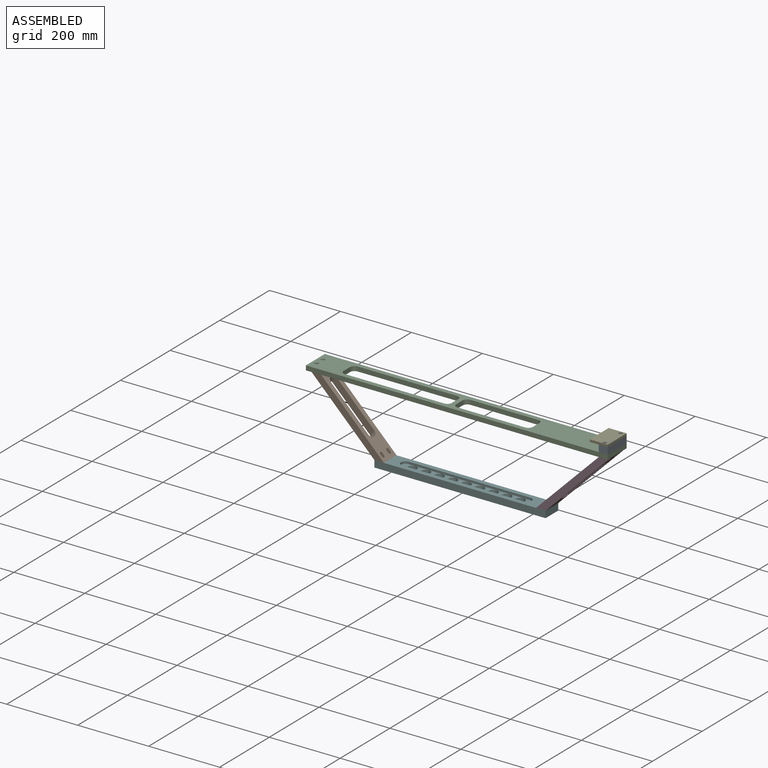
[diagram: assembled view]
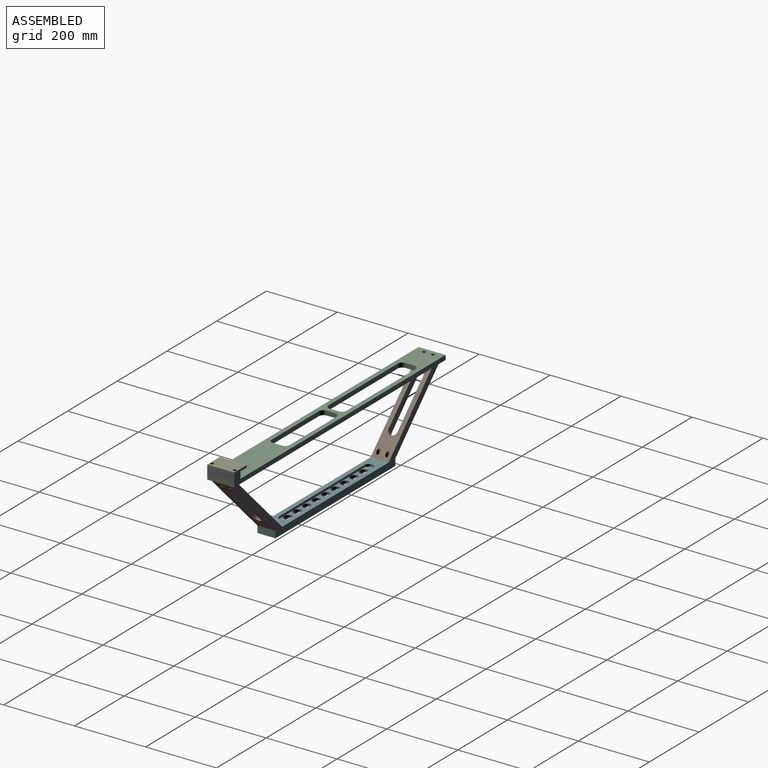
[diagram: assembled view, second angle]
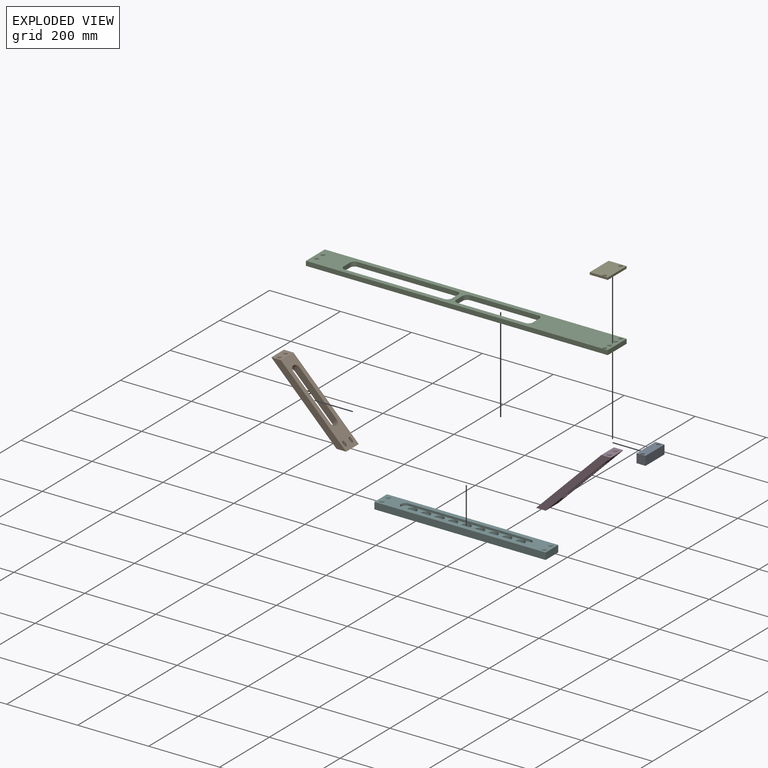
[diagram: exploded view]
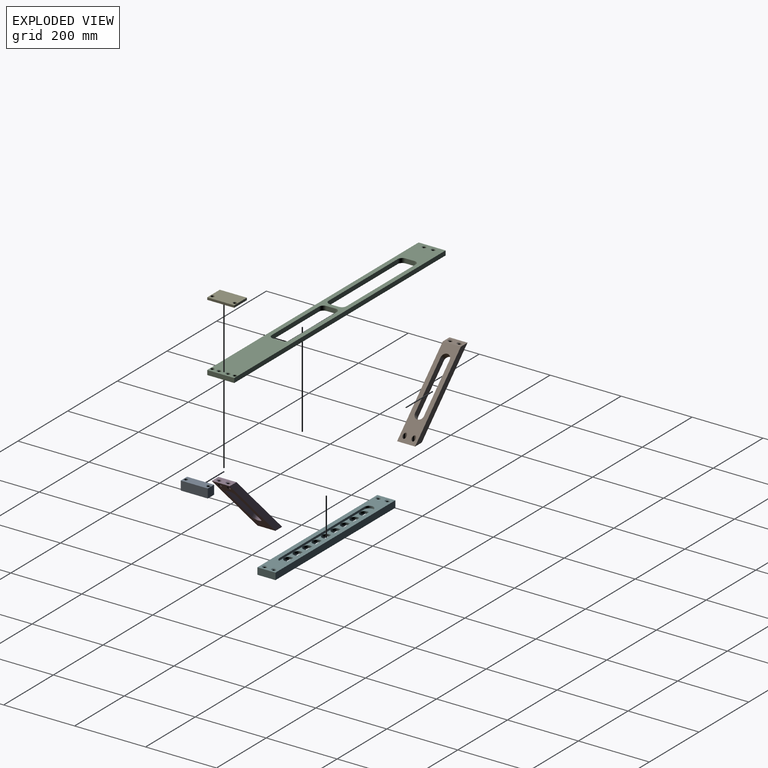
[diagram: exploded view, second angle]
ASSEMBLY  parts=6 mates=4
PART A: 12 faces, bbox 76.2x25.4x25.4 mm
  f0: plane 76.2x25.4mm, normal (0,0,1), area 1730.3mm2, adj f1,f3,f4,f5,f7,f9
  f1: plane 25.4x25.4mm, normal (-1,0,0), area 645.2mm2, adj f0,f2,f4,f5
  f2: plane 76.2x25.4mm, normal (0,0,-1), area 1706.8mm2, adj f1,f3,f4,f5,f10,f11
  f3: plane 25.4x25.4mm, normal (1,0,0), area 645.2mm2, adj f0,f2,f4,f5
  f4: plane 76.2x25.4mm, normal (0,-1,0), area 1935.5mm2, adj f0,f1,f2,f3
  f5: plane 76.2x25.4mm, normal (0,1,0), area 1935.5mm2, adj f0,f1,f2,f3
  f6: cylinder r=4.76mm len=23.03mm, axis (0,0,1), area 689.3mm2, adj f7,f10
  f7: cone r=4.76mm half-angle=41deg, axis (0,0,1), area 47.8mm2, adj f0,f6
  f8: cylinder r=4.76mm len=23.03mm, axis (0,0,1), area 689.3mm2, adj f9,f11
  f9: cone r=4.76mm half-angle=41deg, axis (0,0,1), area 47.8mm2, adj f0,f8
  f10: cone r=4.76mm half-angle=45deg, axis (0,0,-1), area 60.9mm2, adj f2,f6
  f11: cone r=4.76mm half-angle=45deg, axis (0,0,-1), area 60.9mm2, adj f2,f8
PART B: 22 faces, bbox 279.4x50.8x31.9 mm
  f0: plane 260.36x50.81mm, normal (0,0,-1), area 8711.2mm2, adj f2,f3,f4,f5,f6,f7,f8,f9
  f1: plane 260.36x50.81mm, normal (0,0,1), area 8708.7mm2, adj f2,f3,f4,f5,f6,f7,f8,f9
  f2: plane 50.8x19.05mm, normal (-0.71,0,-0.71), area 1062mm2, adj f0,f1,f4,f5,f11,f13
  f3: plane 50.8x19.05mm, normal (0.71,0,0.71), area 1062mm2, adj f0,f1,f4,f5,f17,f19
  f4: plane 279.4x19.05mm, normal (0,-1,0), area 4959.7mm2, adj f0,f1,f2,f3
  f5: plane 279.4x19.05mm, normal (0,1,0), area 4959.7mm2, adj f0,f1,f2,f3
  f6: plane 146.05x19.05mm, normal (0,-1,0), area 2782.3mm2, adj f0,f1,f7,f9
  f7: cylinder r=12.7mm len=25.4mm, axis (0,0,1), area 760.1mm2, adj f0,f1,f6,f8
  f8: plane 146.05x19.05mm, normal (0,1,0), area 2782.3mm2, adj f0,f1,f7,f9
  f9: cylinder r=12.7mm len=25.4mm, axis (0,0,1), area 760.1mm2, adj f0,f1,f6,f8
  f10: cylinder r=4.76mm len=17.51mm, axis (-0.71,0,-0.71), area 281.2mm2, adj f11,f14
  f11: cone r=4.76mm half-angle=41deg, axis (-0.71,0,-0.71), area 125mm2, adj f2,f10
  f12: cylinder r=4.76mm len=17.51mm, axis (-0.71,0,-0.71), area 281.2mm2, adj f13,f15
  f13: cone r=4.76mm half-angle=41deg, axis (-0.71,0,-0.71), area 125mm2, adj f2,f12
  f14: bspline ~16.45x11.63mm, area 60mm2, adj f1,f10
  f15: bspline ~16.45x11.63mm, area 60mm2, adj f1,f12
  f16: cylinder r=4.76mm len=17.51mm, axis (0.71,0,0.71), area 281.2mm2, adj f17,f20
  f17: cone r=4.76mm half-angle=41deg, axis (0.71,0,0.71), area 125mm2, adj f3,f16
  f18: cylinder r=4.76mm len=17.51mm, axis (0.71,0,0.71), area 281.2mm2, adj f19,f21
  f19: cone r=4.76mm half-angle=41deg, axis (0.71,0,0.71), area 125mm2, adj f3,f18
  f20: bspline ~16.45x11.63mm, area 60mm2, adj f0,f16
  f21: bspline ~16.45x11.63mm, area 60mm2, adj f0,f18
PART C: 40 faces, bbox 850.9x76.2x12.7 mm
  f0: plane 850.9x76.2mm, normal (0,0,1), area 37952mm2, adj f2,f3,f4,f5,f6,f7,f8,f9
  f1: plane 850.9x76.2mm, normal (0,0,-1), area 37978mm2, adj f2,f3,f4,f5,f6,f7,f8,f9
  f2: plane 76.2x12.7mm, normal (-1,0,0), area 967.7mm2, adj f0,f1,f4,f5
  f3: plane 76.2x12.7mm, normal (1,0,0), area 967.7mm2, adj f0,f1,f4,f5
  f4: plane 850.9x12.7mm, normal (0,-1,0), area 10806.4mm2, adj f0,f1,f2,f3
  f5: plane 850.9x12.7mm, normal (0,1,0), area 10806.4mm2, adj f0,f1,f2,f3
  f6: plane 25.4x12.7mm, normal (1,0,0), area 322.6mm2, adj f0,f1,f7,f13
  f7: cylinder r=12.7mm len=12.7mm, axis (0,0,1), area 253.4mm2, adj f0,f1,f6,f8
  f8: plane 190.5x12.7mm, normal (0,1,0), area 2419.3mm2, adj f0,f1,f7,f9
  f9: cylinder r=12.7mm len=12.7mm, axis (0,0,1), area 253.4mm2, adj f0,f1,f8,f10
  f10: plane 25.4x12.7mm, normal (-1,0,0), area 322.6mm2, adj f0,f1,f9,f11
  f11: cylinder r=12.7mm len=12.7mm, axis (0,0,1), area 253.4mm2, adj f0,f1,f10,f12
  f12: plane 190.5x12.7mm, normal (0,-1,0), area 2419.3mm2, adj f0,f1,f11,f13
  f13: cylinder r=12.7mm len=12.7mm, axis (0,0,1), area 253.4mm2, adj f0,f1,f6,f12
  f14: plane 25.4x12.7mm, normal (-1,0,0), area 322.6mm2, adj f0,f1,f15,f21
  f15: cylinder r=12.7mm len=12.7mm, axis (0,0,1), area 253.4mm2, adj f0,f1,f14,f16
  f16: plane 279.4x12.7mm, normal (0,-1,0), area 3548.4mm2, adj f0,f1,f15,f17
  f17: cylinder r=12.7mm len=12.7mm, axis (0,0,1), area 253.4mm2, adj f0,f1,f16,f18
  f18: plane 25.4x12.7mm, normal (1,0,0), area 322.6mm2, adj f0,f1,f17,f19
  f19: cylinder r=12.7mm len=12.7mm, axis (0,0,1), area 253.4mm2, adj f0,f1,f18,f20
  f20: plane 279.4x12.7mm, normal (0,1,0), area 3548.4mm2, adj f0,f1,f19,f21
  f21: cylinder r=12.7mm len=12.7mm, axis (0,0,1), area 253.4mm2, adj f0,f1,f14,f20
  f22: cylinder r=4.76mm len=10.33mm, axis (0,0,1), area 309.2mm2, adj f23,f36
  f23: cone r=4.76mm half-angle=41deg, axis (0,0,1), area 47.8mm2, adj f0,f22
  f24: cylinder r=4.76mm len=10.33mm, axis (0,0,1), area 309.2mm2, adj f25,f39
  f25: cone r=4.76mm half-angle=41deg, axis (0,0,1), area 47.8mm2, adj f0,f24
  f26: cylinder r=4.76mm len=9.6mm, axis (0,0,1), area 287.4mm2, adj f27,f31
  f27: cone r=4.76mm half-angle=41deg, axis (0,0,1), area 84.5mm2, adj f0,f26
  f28: cylinder r=4.76mm len=9.6mm, axis (0,0,1), area 287.4mm2, adj f29,f30
  f29: cone r=4.76mm half-angle=41deg, axis (0,0,1), area 84.5mm2, adj f0,f28
  f30: cone r=4.76mm half-angle=45deg, axis (0,0,-1), area 60.9mm2, adj f1,f28
  f31: cone r=4.76mm half-angle=45deg, axis (0,0,-1), area 60.9mm2, adj f1,f26
  f32: cylinder r=4.76mm len=9.6mm, axis (0,0,1), area 287.4mm2, adj f33,f38
  f33: cone r=4.76mm half-angle=41deg, axis (0,0,1), area 84.5mm2, adj f0,f32
  f34: cylinder r=4.76mm len=9.6mm, axis (0,0,1), area 287.4mm2, adj f35,f37
  f35: cone r=4.76mm half-angle=41deg, axis (0,0,1), area 84.5mm2, adj f0,f34
  f36: cone r=4.76mm half-angle=45deg, axis (0,0,-1), area 60.9mm2, adj f1,f22
  f37: cone r=4.76mm half-angle=45deg, axis (0,0,-1), area 60.9mm2, adj f1,f34
  f38: cone r=4.76mm half-angle=45deg, axis (0,0,-1), area 60.9mm2, adj f1,f32
  f39: cone r=4.76mm half-angle=45deg, axis (0,0,-1), area 60.9mm2, adj f1,f24
PART D: same geometry as B
PART E: 12 faces, bbox 76.2x6.4x50.8 mm
  f0: plane 76.2x6.35mm, normal (0,0,1), area 483.9mm2, adj f1,f3,f4,f5
  f1: plane 50.8x6.35mm, normal (-1,0,0), area 322.6mm2, adj f0,f2,f4,f5
  f2: plane 76.2x6.35mm, normal (0,0,-1), area 483.9mm2, adj f1,f3,f4,f5
  f3: plane 50.8x6.35mm, normal (1,0,0), area 322.6mm2, adj f0,f2,f4,f5
  f4: plane 76.2x50.8mm, normal (0,-1,0), area 3665.7mm2, adj f0,f1,f2,f3,f7,f9
  f5: plane 76.2x50.8mm, normal (0,1,0), area 3642.3mm2, adj f0,f1,f2,f3,f10,f11
  f6: cylinder r=4.76mm len=9.53mm, axis (0,-1,0), area 119.2mm2, adj f7,f10
  f7: cone r=4.76mm half-angle=41deg, axis (0,-1,0), area 47.8mm2, adj f4,f6
  f8: cylinder r=4.76mm len=9.53mm, axis (0,-1,0), area 119.2mm2, adj f9,f11
  f9: cone r=4.76mm half-angle=41deg, axis (0,-1,0), area 47.8mm2, adj f4,f8
  f10: cone r=4.76mm half-angle=45deg, axis (0,1,0), area 60.9mm2, adj f5,f6
  f11: cone r=4.76mm half-angle=45deg, axis (0,1,0), area 60.9mm2, adj f5,f8
PART F: 55 faces, bbox 482.6x50.8x19.1 mm
  f0: cylinder r=12.7mm len=25.4mm, axis (0,0,1), area 506.7mm2, adj f17,f26,f45,f54
  f1: cylinder r=12.7mm len=25.4mm, axis (0,0,1), area 506.7mm2, adj f23,f24,f46,f52
  f2: cylinder r=12.7mm len=25.4mm, axis (0,0,1), area 506.7mm2, adj f24,f25,f42,f52
  f3: cylinder r=12.7mm len=25.4mm, axis (0,0,1), area 506.7mm2, adj f21,f22,f47,f51
  f4: cylinder r=12.7mm len=25.4mm, axis (0,0,1), area 506.7mm2, adj f22,f23,f46,f51
  f5: cylinder r=12.7mm len=25.4mm, axis (0,0,1), area 506.7mm2, adj f19,f20,f48,f50
  f6: cylinder r=12.7mm len=25.4mm, axis (0,0,1), area 506.7mm2, adj f20,f21,f47,f50
  f7: cylinder r=12.7mm len=25.4mm, axis (0,0,1), area 506.7mm2, adj f17,f18,f45,f49
  f8: cylinder r=12.7mm len=25.4mm, axis (0,0,1), area 506.7mm2, adj f18,f19,f48,f49
  f9: plane 482.6x50.8mm, normal (0,0,1), area 14686.6mm2, adj f10,f12,f13,f14,f15,f16,f27,f28
  f10: plane 50.8x19.05mm, normal (-1,0,0), area 967.7mm2, adj f9,f11,f13,f14
  f11: plane 482.6x50.8mm, normal (0,0,-1), area 14629.6mm2, adj f10,f12,f13,f14,f37,f38,f39,f40
  f12: plane 50.8x19.05mm, normal (1,0,0), area 967.7mm2, adj f9,f11,f13,f14
  f13: plane 482.6x19.05mm, normal (0,-1,0), area 9193.5mm2, adj f9,f10,f11,f12
  f14: plane 482.6x19.05mm, normal (0,1,0), area 9193.5mm2, adj f9,f10,f11,f12
  f15: plane 342.9x6.35mm, normal (0,1,0), area 2177.4mm2, adj f9,f17,f18,f19,f20,f21,f22,f23
  f16: plane 342.9x6.35mm, normal (0,-1,0), area 2177.4mm2, adj f9,f17,f18,f19,f20,f21,f22,f23
  f17: plane 38.1x25.4mm, normal (0,0,1), area 461mm2, adj f0,f7,f15,f16
  f18: plane 38.1x25.4mm, normal (0,0,1), area 461mm2, adj f7,f8,f15,f16
  f19: plane 38.1x25.4mm, normal (0,0,1), area 461mm2, adj f5,f8,f15,f16
  f20: plane 38.1x25.4mm, normal (0,0,1), area 461mm2, adj f5,f6,f15,f16
  f21: plane 38.1x25.4mm, normal (0,0,1), area 461mm2, adj f3,f6,f15,f16
  f22: plane 38.1x25.4mm, normal (0,0,1), area 461mm2, adj f3,f4,f15,f16
  f23: plane 38.1x25.4mm, normal (0,0,1), area 461mm2, adj f1,f4,f15,f16
  f24: plane 38.1x25.4mm, normal (0,0,1), area 461mm2, adj f1,f2,f15,f16
  f25: plane 31.75x25.4mm, normal (0,0,1), area 483.9mm2, adj f2,f15,f16,f28
  f26: plane 31.75x25.4mm, normal (0,0,1), area 483.9mm2, adj f0,f15,f16,f27
  f27: cylinder r=12.7mm len=25.4mm, axis (0,0,1), area 253.4mm2, adj f9,f15,f16,f26
  f28: cylinder r=12.7mm len=25.4mm, axis (0,0,1), area 253.4mm2, adj f9,f15,f16,f25
  f29: cylinder r=4.76mm len=13.95mm, axis (0,0,1), area 417.5mm2, adj f30,f39
  f30: cone r=4.76mm half-angle=41deg, axis (0,0,1), area 125mm2, adj f9,f29
  f31: cylinder r=4.76mm len=13.95mm, axis (0,0,1), area 417.5mm2, adj f32,f38
  f32: cone r=4.76mm half-angle=41deg, axis (0,0,1), area 125mm2, adj f9,f31
  f33: cylinder r=4.76mm len=13.95mm, axis (0,0,1), area 417.5mm2, adj f34,f37
  f34: cone r=4.76mm half-angle=41deg, axis (0,0,1), area 125mm2, adj f9,f33
  f35: cylinder r=4.76mm len=13.95mm, axis (0,0,1), area 417.5mm2, adj f36,f40
  f36: cone r=4.76mm half-angle=41deg, axis (0,0,1), area 125mm2, adj f9,f35
  f37: cone r=4.76mm half-angle=45deg, axis (0,0,-1), area 136.2mm2, adj f11,f33
  f38: cone r=4.76mm half-angle=45deg, axis (0,0,-1), area 136.2mm2, adj f11,f31
  f39: cone r=4.76mm half-angle=45deg, axis (0,0,-1), area 136.2mm2, adj f11,f29
  f40: cone r=4.76mm half-angle=45deg, axis (0,0,-1), area 136.2mm2, adj f11,f35
  f41: cylinder r=12.7mm len=25.4mm, axis (0,0,-1), area 253.4mm2, adj f11,f42,f43,f44
  f42: plane 31.75x25.4mm, normal (0,0,-1), area 483.9mm2, adj f2,f41,f43,f44
  f43: plane 342.9x6.35mm, normal (0,1,0), area 2177.4mm2, adj f11,f41,f42,f45,f46,f47,f48,f49
  f44: plane 342.9x6.35mm, normal (0,-1,0), area 2177.4mm2, adj f11,f41,f42,f45,f46,f47,f48,f49
  f45: plane 38.1x25.4mm, normal (0,0,-1), area 461mm2, adj f0,f7,f43,f44
  f46: plane 38.1x25.4mm, normal (0,0,-1), area 461mm2, adj f1,f4,f43,f44
  f47: plane 38.1x25.4mm, normal (0,0,-1), area 461mm2, adj f3,f6,f43,f44
  f48: plane 38.1x25.4mm, normal (0,0,-1), area 461mm2, adj f5,f8,f43,f44
  f49: plane 38.1x25.4mm, normal (0,0,-1), area 461mm2, adj f7,f8,f43,f44
  f50: plane 38.1x25.4mm, normal (0,0,-1), area 461mm2, adj f5,f6,f43,f44
  f51: plane 38.1x25.4mm, normal (0,0,-1), area 461mm2, adj f3,f4,f43,f44
  f52: plane 38.1x25.4mm, normal (0,0,-1), area 461mm2, adj f1,f2,f43,f44
  f53: cylinder r=12.7mm len=25.4mm, axis (0,0,-1), area 253.4mm2, adj f11,f43,f44,f54
  f54: plane 31.75x25.4mm, normal (0,0,-1), area 483.9mm2, adj f0,f43,f44,f53
PLACE A rot(axis=(0,0,1),90deg) t=(526.44,100.06,288.25)mm
PLACE B rot(axis=(0.92,0,-0.38),180deg) t=(-236.64,72.76,109.57)mm
PLACE C t=(126.39,136.26,276.79)mm
PLACE D rot(axis=(0,1,0),135deg) t=(489.53,123.56,109.57)mm
PLACE E rot(axis=(-0.58,-0.58,0.58),120deg) t=(519.93,88.79,263.11)mm
PLACE F t=(126.44,123.56,99.28)mm
MATE parallel F.f9 <-> B.f3  axis (0,0,1) through (-114.86,98.16,47.26)mm
MATE parallel A.f2 <-> C.f0  axis (0,0,-1) through (551.84,98.16,244.06)mm
MATE parallel E.f4 <-> A.f0  axis (0,0,1) through (551.84,98.16,269.46)mm
MATE parallel C.f1 <-> D.f2  axis (0,0,-1) through (551.84,98.16,231.36)mm
